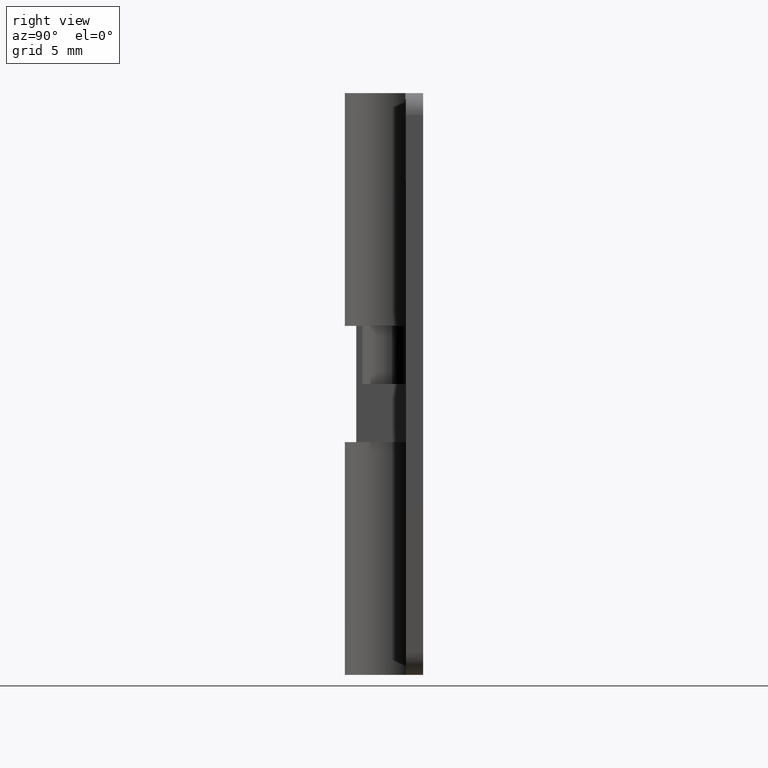
[diagram: clean part render]
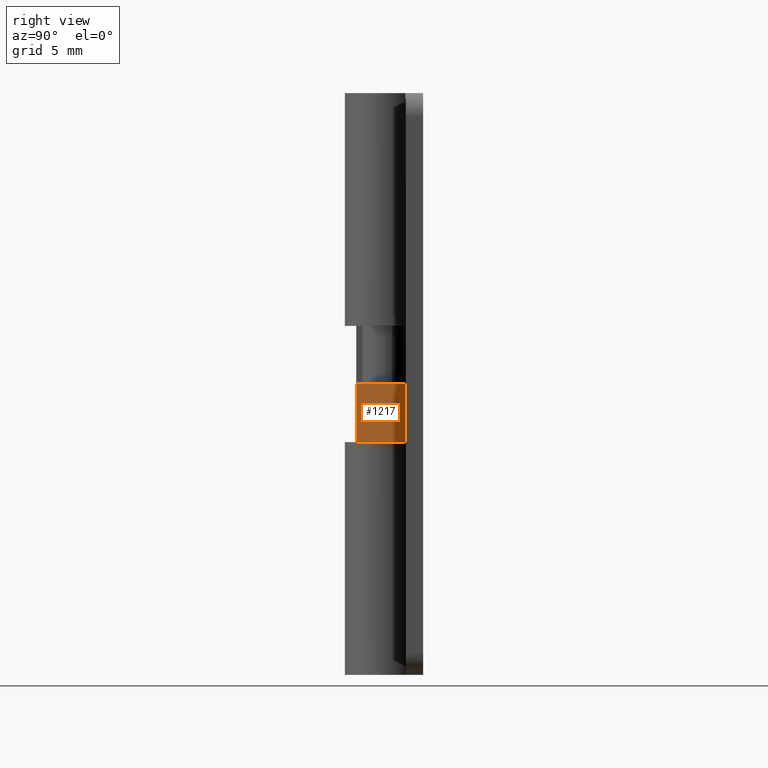
[diagram: same view with one face highlighted and labeled with its STEP entity id]
A machine part, right view. The second image highlights one B-rep face of the part: STEP entity #1217.
In plain terms, the highlighted face is a freeform B-spline surface patch.
Its self-contained STEP definition (entity closure, byte-faithful):
#1159=CARTESIAN_POINT('',(3.0,-1.900001000000000,19.999962000000000));
#1160=VERTEX_POINT('',#1159);
#1175=CARTESIAN_POINT('',(3.0,-1.900001000000000,16.0));
#1176=VERTEX_POINT('',#1175);
#1182=CARTESIAN_POINT('',(3.0,-1.900001000000000,16.0));
#1183=CARTESIAN_POINT('',(3.0,-1.900001000000000,19.999962000000000));
#1184=QUASI_UNIFORM_CURVE('',1,(#1182,#1183),.UNSPECIFIED.,.F.,.U.);
#1185=EDGE_CURVE('',#1176,#1160,#1184,.T.);
#1190=CARTESIAN_POINT('',(3.0,-2.069831107193700,15.800201920143380));
#1191=CARTESIAN_POINT('',(3.0,-2.069831107193700,20.199759901044391));
#1192=CARTESIAN_POINT('',(3.0,1.669830137592248,15.800201920143380));
#1193=CARTESIAN_POINT('',(3.0,1.669830137592248,20.199759901044391));
#1194=B_SPLINE_SURFACE_WITH_KNOTS('',1,1,((#1190,#1192),(#1191,#1193)),.UNSPECIFIED.,.F.,.F.,.U.,(2,2),(2,2),(0.0,4.399557980901015),(0.0,3.739661244785947),.UNSPECIFIED.);
#1195=CARTESIAN_POINT('',(3.0,1.500000000000170,19.999962000000000));
#1196=VERTEX_POINT('',#1195);
#1197=CARTESIAN_POINT('',(3.0,1.500000000000115,16.0));
#1198=VERTEX_POINT('',#1197);
#1199=CARTESIAN_POINT('',(3.0,1.500000000000170,19.999962000000000));
#1200=CARTESIAN_POINT('',(3.0,1.500000000000115,16.0));
#1201=QUASI_UNIFORM_CURVE('',1,(#1199,#1200),.UNSPECIFIED.,.F.,.U.);
#1202=EDGE_CURVE('',#1196,#1198,#1201,.T.);
#1203=ORIENTED_EDGE('',*,*,#1202,.F.);
#1204=CARTESIAN_POINT('',(3.0,-1.900001000000000,19.999962000000000));
#1205=CARTESIAN_POINT('',(3.0,1.500000000000170,19.999962000000000));
#1206=QUASI_UNIFORM_CURVE('',1,(#1204,#1205),.UNSPECIFIED.,.F.,.U.);
#1207=EDGE_CURVE('',#1160,#1196,#1206,.T.);
#1208=ORIENTED_EDGE('',*,*,#1207,.F.);
#1209=ORIENTED_EDGE('',*,*,#1185,.F.);
#1210=CARTESIAN_POINT('',(3.0,-1.900001000000000,16.0));
#1211=CARTESIAN_POINT('',(3.0,1.500000000000115,16.0));
#1212=QUASI_UNIFORM_CURVE('',1,(#1210,#1211),.UNSPECIFIED.,.F.,.U.);
#1213=EDGE_CURVE('',#1176,#1198,#1212,.T.);
#1214=ORIENTED_EDGE('',*,*,#1213,.T.);
#1215=EDGE_LOOP('',(#1203,#1208,#1209,#1214));
#1216=FACE_OUTER_BOUND('',#1215,.T.);
#1217=ADVANCED_FACE('',(#1216),#1194,.F.);